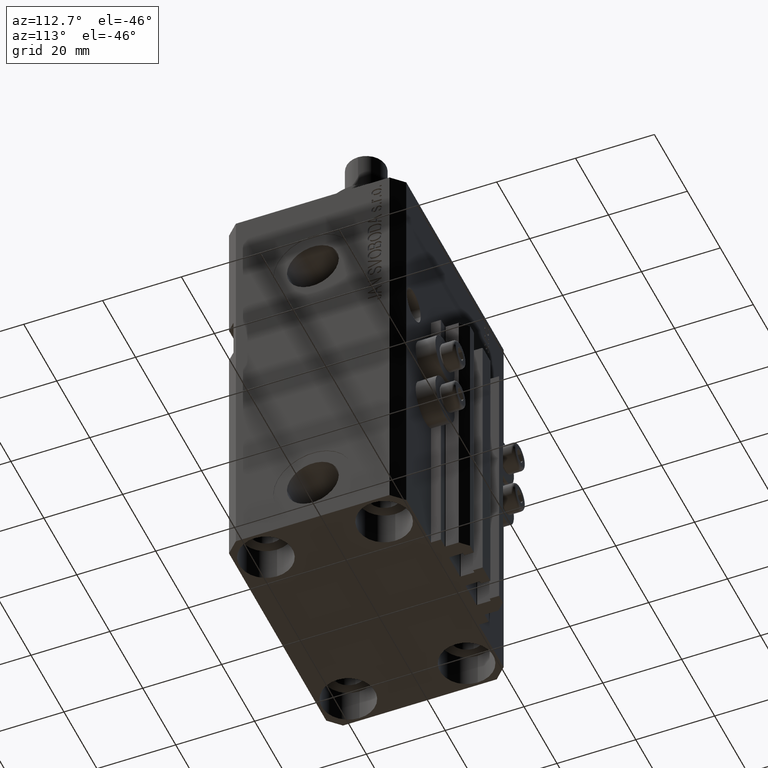
[diagram: clean part render]
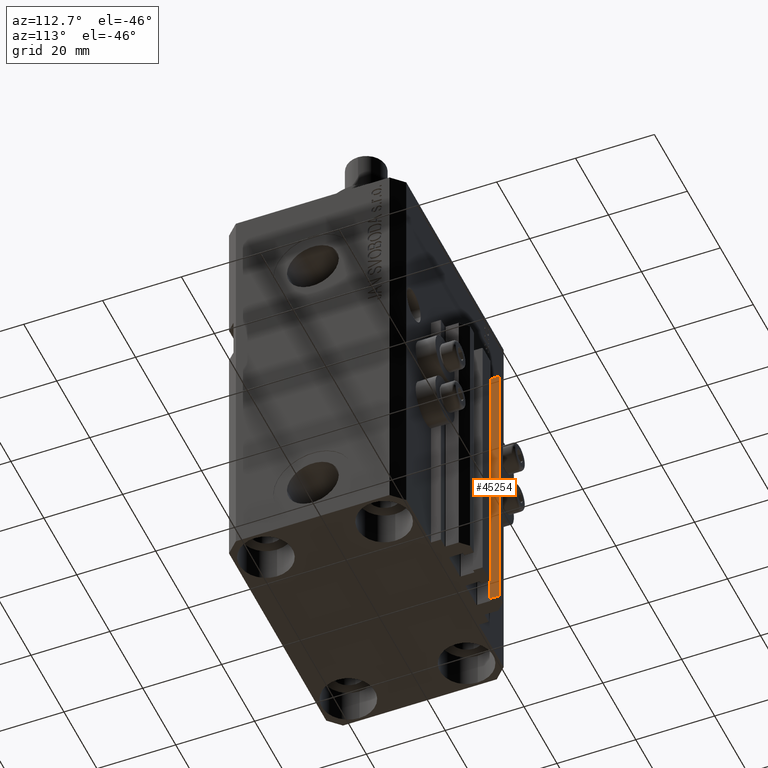
[diagram: same view with one face highlighted and labeled with its STEP entity id]
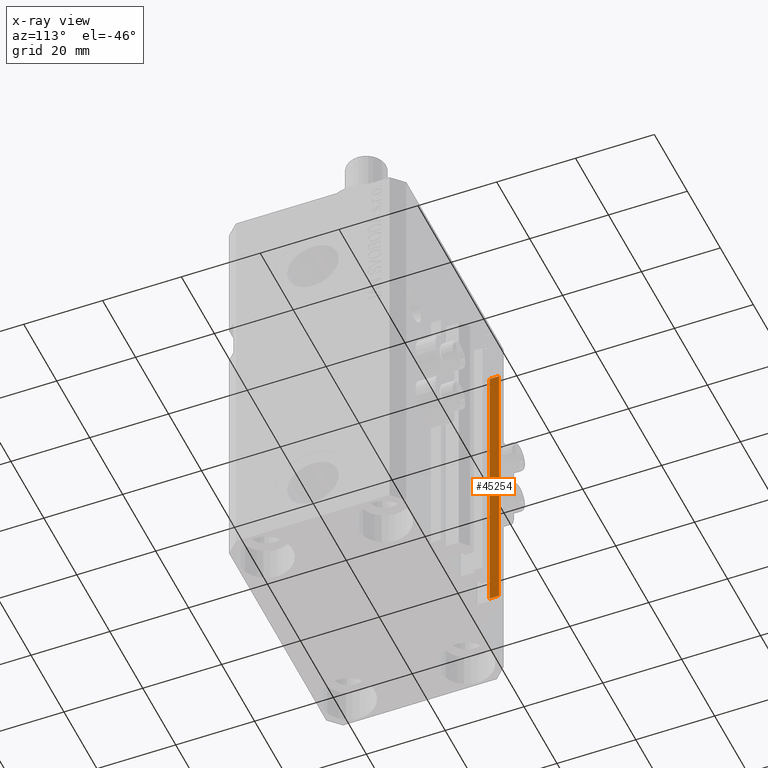
[diagram: x-ray of the same camera — body ghosted, the highlighted face saturated]
A machine part, auxiliary view. The second image highlights one B-rep face of the part: STEP entity #45254.
The next image is the same camera in x-ray: the body ghosted, the highlighted face saturated — about 0% of this face is hidden behind the body in this view.
In plain terms, the highlighted planar face has unit normal (1, 0, 0).
Its self-contained STEP definition (entity closure, byte-faithful):
#75 = CARTESIAN_POINT ( 'NONE',  ( -7.650000000000000355, 28.09999999999948628, -107.0000000000000000 ) ) ;
#2841 = EDGE_CURVE ( 'NONE', #29210, #32651, #32142, .T. ) ;
#3442 = CARTESIAN_POINT ( 'NONE',  ( -7.650000000000000355, 30.49999999999948486, -107.0000000000000000 ) ) ;
#4173 = VERTEX_POINT ( 'NONE', #3442 ) ;
#7125 = EDGE_CURVE ( 'NONE', #24921, #29210, #25618, .T. ) ;
#8156 = ORIENTED_EDGE ( 'NONE', *, *, #25125, .T. ) ;
#10239 = CARTESIAN_POINT ( 'NONE',  ( -7.650000000000000355, 30.49999999999948486, -33.00000000000000000 ) ) ;
#13713 = ORIENTED_EDGE ( 'NONE', *, *, #2841, .F. ) ;
#13920 = CARTESIAN_POINT ( 'NONE',  ( -7.650000000000000355, 30.49999999999948486, -107.0000000000000000 ) ) ;
#14196 = CARTESIAN_POINT ( 'NONE',  ( -7.650000000000000355, 28.09999999999948628, -107.0000000000000000 ) ) ;
#14208 = EDGE_CURVE ( 'NONE', #4173, #32651, #48076, .T. ) ;
#14404 = DIRECTION ( 'NONE',  ( 0.000000000000000000, 0.000000000000000000, 1.000000000000000000 ) ) ;
#15624 = EDGE_LOOP ( 'NONE', ( #13713, #17203, #8156, #39536 ) ) ;
#17203 = ORIENTED_EDGE ( 'NONE', *, *, #7125, .F. ) ;
#17697 = VECTOR ( 'NONE', #25134, 1000.000000000000000 ) ;
#24504 = FACE_OUTER_BOUND ( 'NONE', #15624, .T. ) ;
#24921 = VERTEX_POINT ( 'NONE', #75 ) ;
#25125 = EDGE_CURVE ( 'NONE', #24921, #4173, #36635, .T. ) ;
#25134 = DIRECTION ( 'NONE',  ( 0.000000000000000000, 0.000000000000000000, 1.000000000000000000 ) ) ;
#25618 = LINE ( 'NONE', #40825, #43817 ) ;
#28656 = CARTESIAN_POINT ( 'NONE',  ( -7.650000000000000355, 28.09999999999948628, -33.00000000000000000 ) ) ;
#29210 = VERTEX_POINT ( 'NONE', #45532 ) ;
#31027 = AXIS2_PLACEMENT_3D ( 'NONE', #39712, #47682, #32457 ) ;
#32142 = LINE ( 'NONE', #28656, #40513 ) ;
#32457 = DIRECTION ( 'NONE',  ( 0.000000000000000000, 0.000000000000000000, -1.000000000000000000 ) ) ;
#32651 = VERTEX_POINT ( 'NONE', #10239 ) ;
#35452 = VECTOR ( 'NONE', #40132, 1000.000000000000000 ) ;
#35478 = PLANE ( 'NONE',  #31027 ) ;
#36635 = LINE ( 'NONE', #14196, #35452 ) ;
#39536 = ORIENTED_EDGE ( 'NONE', *, *, #14208, .T. ) ;
#39712 = CARTESIAN_POINT ( 'NONE',  ( -7.650000000000000355, 28.09999999999948628, -107.0000000000000000 ) ) ;
#40132 = DIRECTION ( 'NONE',  ( 0.000000000000000000, 1.000000000000000000, 0.000000000000000000 ) ) ;
#40513 = VECTOR ( 'NONE', #47364, 1000.000000000000000 ) ;
#40825 = CARTESIAN_POINT ( 'NONE',  ( -7.650000000000000355, 28.09999999999948628, -107.0000000000000000 ) ) ;
#43817 = VECTOR ( 'NONE', #14404, 1000.000000000000000 ) ;
#45254 = ADVANCED_FACE ( 'NONE', ( #24504 ), #35478, .T. ) ;
#45532 = CARTESIAN_POINT ( 'NONE',  ( -7.650000000000000355, 28.09999999999948628, -33.00000000000000000 ) ) ;
#47364 = DIRECTION ( 'NONE',  ( 0.000000000000000000, 1.000000000000000000, 0.000000000000000000 ) ) ;
#47682 = DIRECTION ( 'NONE',  ( 1.000000000000000000, 0.000000000000000000, 0.000000000000000000 ) ) ;
#48076 = LINE ( 'NONE', #13920, #17697 ) ;